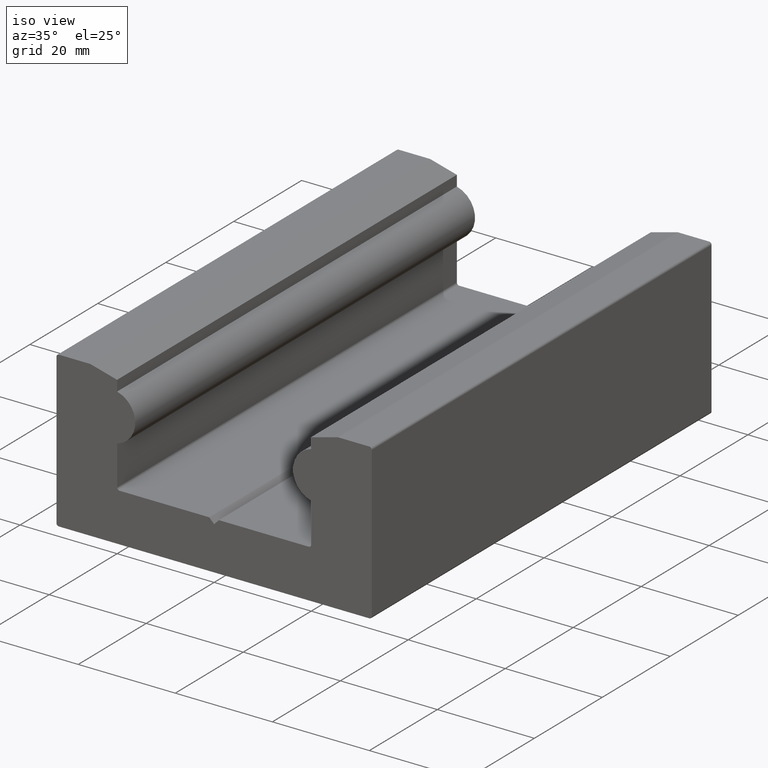
[diagram: clean part render]
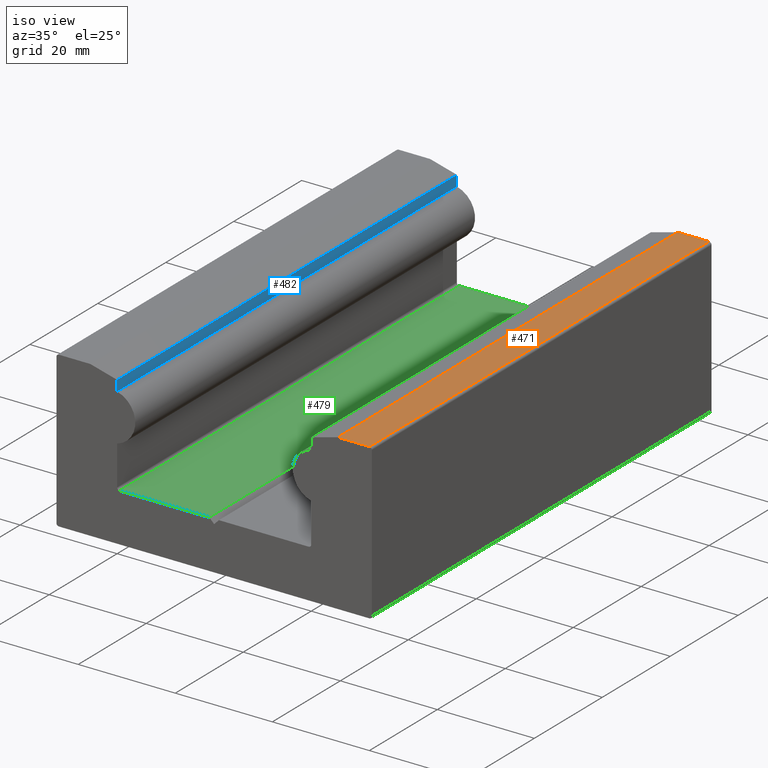
[diagram: same view with three faces highlighted in distinct colors, each labeled with its STEP entity id]
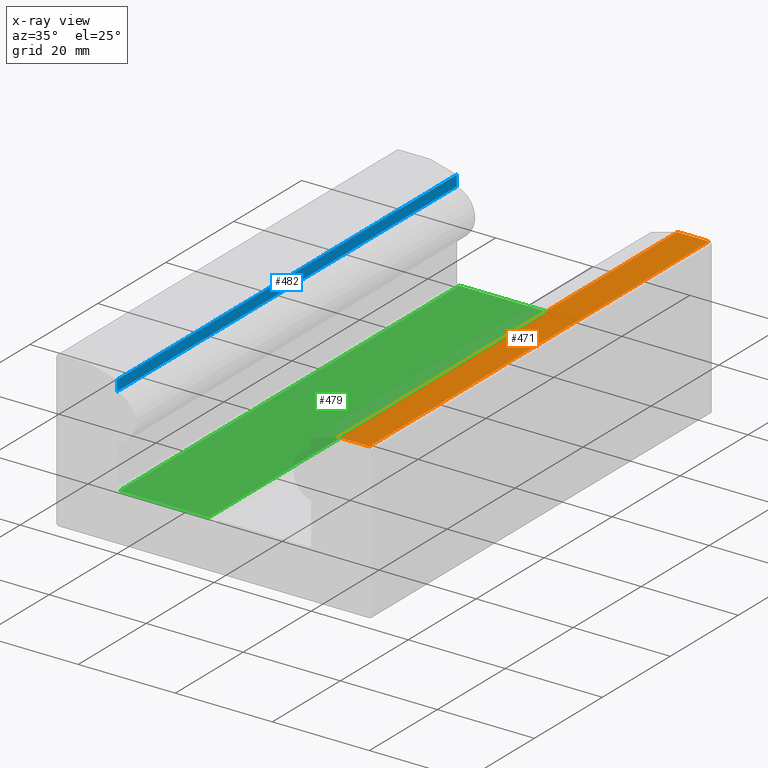
[diagram: x-ray of the same camera — body ghosted, the three highlighted faces saturated]
A machine part, iso view with three faces highlighted in distinct colors.
The next image is the same camera in x-ray (body ghosted, the three faces saturated) — at least one of them is partly hidden behind the body in this view.
Their STEP definitions:

[orange] entity #471 — the highlighted planar face has unit normal (0, 0, 1).
#15=PLANE('',#525);
#35=FACE_OUTER_BOUND('',#60,.T.);
#60=EDGE_LOOP('',(#334,#335,#336,#337));
#105=LINE('',#726,#158);
#106=LINE('',#729,#159);
#107=LINE('',#731,#160);
#108=LINE('',#732,#161);
#158=VECTOR('',#586,10.);
#159=VECTOR('',#589,10.);
#160=VECTOR('',#590,10.);
#161=VECTOR('',#591,10.);
#215=VERTEX_POINT('',#722);
#216=VERTEX_POINT('',#724);
#217=VERTEX_POINT('',#728);
#218=VERTEX_POINT('',#730);
#263=EDGE_CURVE('',#215,#216,#105,.T.);
#264=EDGE_CURVE('',#217,#215,#106,.T.);
#265=EDGE_CURVE('',#218,#216,#107,.T.);
#266=EDGE_CURVE('',#217,#218,#108,.T.);
#334=ORIENTED_EDGE('',*,*,#264,.T.);
#335=ORIENTED_EDGE('',*,*,#263,.T.);
#336=ORIENTED_EDGE('',*,*,#265,.F.);
#337=ORIENTED_EDGE('',*,*,#266,.F.);
#471=ADVANCED_FACE('',(#35),#15,.T.);
#525=AXIS2_PLACEMENT_3D('',#727,#587,#588);
#586=DIRECTION('',(0.,1.,0.));
#587=DIRECTION('center_axis',(0.,0.,1.));
#588=DIRECTION('ref_axis',(1.,0.,0.));
#589=DIRECTION('',(1.,0.,0.));
#590=DIRECTION('',(1.,0.,0.));
#591=DIRECTION('',(0.,1.,0.));
#722=CARTESIAN_POINT('',(32.,0.,16.));
#724=CARTESIAN_POINT('',(32.,100.,16.));
#726=CARTESIAN_POINT('',(32.,0.,16.));
#727=CARTESIAN_POINT('Origin',(25.5,0.,16.));
#728=CARTESIAN_POINT('',(25.5,0.,16.));
#729=CARTESIAN_POINT('',(25.5,0.,16.));
#730=CARTESIAN_POINT('',(25.5,100.,16.));
#731=CARTESIAN_POINT('',(25.5,100.,16.));
#732=CARTESIAN_POINT('',(25.5,0.,16.));

[blue] entity #482 — the highlighted planar face has unit normal (1, 0, 0).
#24=PLANE('',#540);
#46=FACE_OUTER_BOUND('',#71,.T.);
#71=EDGE_LOOP('',(#378,#379,#380,#381));
#100=LINE('',#710,#153);
#133=LINE('',#789,#186);
#134=LINE('',#791,#187);
#135=LINE('',#792,#188);
#153=VECTOR('',#571,10.);
#186=VECTOR('',#646,10.);
#187=VECTOR('',#647,10.);
#188=VECTOR('',#648,10.);
#209=VERTEX_POINT('',#707);
#210=VERTEX_POINT('',#709);
#235=VERTEX_POINT('',#788);
#236=VERTEX_POINT('',#790);
#255=EDGE_CURVE('',#210,#209,#100,.T.);
#295=EDGE_CURVE('',#235,#210,#133,.T.);
#296=EDGE_CURVE('',#236,#209,#134,.T.);
#297=EDGE_CURVE('',#235,#236,#135,.T.);
#378=ORIENTED_EDGE('',*,*,#295,.T.);
#379=ORIENTED_EDGE('',*,*,#255,.T.);
#380=ORIENTED_EDGE('',*,*,#296,.F.);
#381=ORIENTED_EDGE('',*,*,#297,.F.);
#482=ADVANCED_FACE('',(#46),#24,.T.);
#540=AXIS2_PLACEMENT_3D('',#787,#644,#645);
#571=DIRECTION('',(0.,1.,0.));
#644=DIRECTION('center_axis',(1.,0.,0.));
#645=DIRECTION('ref_axis',(0.,0.,-1.));
#646=DIRECTION('',(0.,0.,-1.));
#647=DIRECTION('',(0.,0.,-1.));
#648=DIRECTION('',(0.,1.,0.));
#707=CARTESIAN_POINT('',(-20.,100.,12.3412291827593));
#709=CARTESIAN_POINT('',(-20.,0.,12.3412291827593));
#710=CARTESIAN_POINT('',(-20.,0.,12.3412291827593));
#787=CARTESIAN_POINT('Origin',(-20.,0.,14.5262794416288));
#788=CARTESIAN_POINT('',(-20.,0.,14.5262794416288));
#789=CARTESIAN_POINT('',(-20.,0.,14.5262794416288));
#790=CARTESIAN_POINT('',(-20.,100.,14.5262794416288));
#791=CARTESIAN_POINT('',(-20.,100.,14.5262794416288));
#792=CARTESIAN_POINT('',(-20.,0.,14.5262794416288));

[green] entity #479 — the highlighted planar face has unit normal (-0, 0, 1).
#22=PLANE('',#535);
#43=FACE_OUTER_BOUND('',#68,.T.);
#68=EDGE_LOOP('',(#366,#367,#368,#369));
#126=LINE('',#771,#179);
#127=LINE('',#774,#180);
#128=LINE('',#776,#181);
#129=LINE('',#777,#182);
#179=VECTOR('',#627,10.);
#180=VECTOR('',#630,10.);
#181=VECTOR('',#631,10.);
#182=VECTOR('',#632,10.);
#229=VERTEX_POINT('',#767);
#230=VERTEX_POINT('',#769);
#231=VERTEX_POINT('',#773);
#232=VERTEX_POINT('',#775);
#286=EDGE_CURVE('',#229,#230,#126,.T.);
#287=EDGE_CURVE('',#231,#229,#127,.T.);
#288=EDGE_CURVE('',#232,#230,#128,.T.);
#289=EDGE_CURVE('',#231,#232,#129,.T.);
#366=ORIENTED_EDGE('',*,*,#287,.T.);
#367=ORIENTED_EDGE('',*,*,#286,.T.);
#368=ORIENTED_EDGE('',*,*,#288,.F.);
#369=ORIENTED_EDGE('',*,*,#289,.F.);
#479=ADVANCED_FACE('',(#43),#22,.T.);
#535=AXIS2_PLACEMENT_3D('',#772,#628,#629);
#627=DIRECTION('',(0.,1.,0.));
#628=DIRECTION('center_axis',(-1.2002411060284E-16,0.,1.));
#629=DIRECTION('ref_axis',(1.,0.,1.2002411060284E-16));
#630=DIRECTION('',(1.,0.,1.2002411060284E-16));
#631=DIRECTION('',(1.,0.,1.2002411060284E-16));
#632=DIRECTION('',(0.,1.,0.));
#767=CARTESIAN_POINT('',(-0.999999974190432,0.,-6.));
#769=CARTESIAN_POINT('',(-0.999999974190433,100.,-6.));
#771=CARTESIAN_POINT('',(-0.999999974190432,0.,-6.));
#772=CARTESIAN_POINT('Origin',(-19.5,0.,-6.00000000000001));
#773=CARTESIAN_POINT('',(-19.5,0.,-6.00000000000001));
#774=CARTESIAN_POINT('',(-19.5,0.,-6.00000000000001));
#775=CARTESIAN_POINT('',(-19.5,100.,-6.00000000000001));
#776=CARTESIAN_POINT('',(-19.5,100.,-6.00000000000001));
#777=CARTESIAN_POINT('',(-19.5,0.,-6.00000000000001));